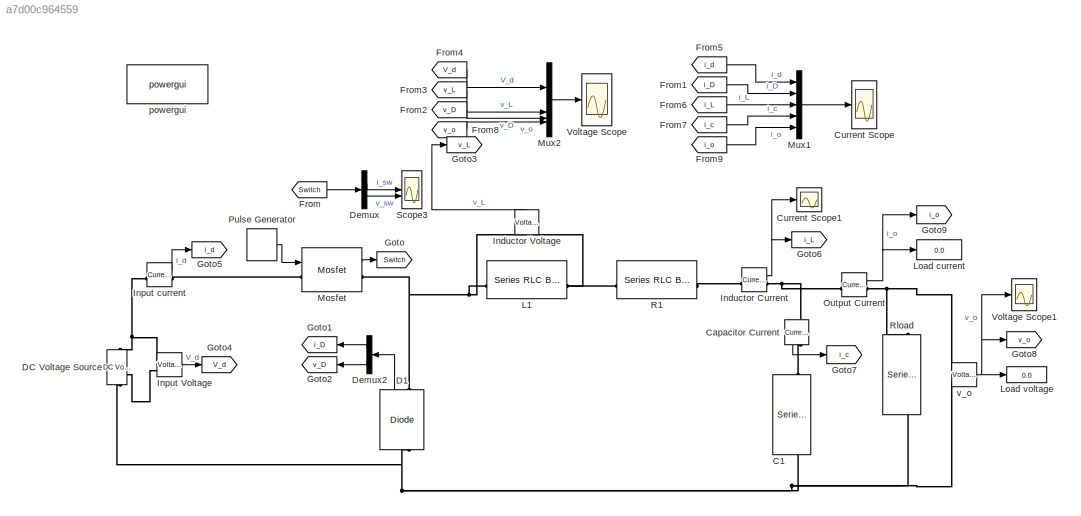
MODEL slx_a7d00c964559
KIND model
CONFIG AbsTol = auto
CONFIG EnableMultiTasking = off
CONFIG FixedStep = auto
CONFIG MaxStep = auto
CONFIG MinStep = auto
CONFIG RelTol = 1e-3
CONFIG SampleTimeConstraint = Unconstrained
CONFIG SolverName = VariableStepAuto
CONFIG StartTime = 0.0
CONFIG StopTime = 0.5
BLOCK [Reference] C1  REF=spsSeriesRLCBranchLib/Series RLC Branch
  NameLocation = left
  SourceBlock = spsSeriesRLCBranchLib/Series RLC Branch
  SourceType = Series RLC Branch
BLOCK [Reference] Capacitor Current  REF=spsCurrentMeasurementLib/Current Measurement
  NameLocation = left
  SourceBlock = spsCurrentMeasurementLib/Current Measurement
  SourceType = Current Measurement
  UserDataPersistent = on
BLOCK [Scope] Current Scope
  Floating = off
  NumInputPorts = 1
  ScopeSpecificationString = Simulink.scopes.TimeScopeBlockCfg('CurrentConfiguration', extmgr.ConfigurationSet(extmgr.Configuration('Core','General UI',true),extmgr.Configuration('Core','Source UI',true),extmgr.Configuration('Sources','WiredSimulink',true,'DataLoggingVariableName','ScopeData1'),extmgr.Configuration('Visuals','Time Domain',true,'SerializedDisplays',{struct('MinYLimReal','-0.55305','MaxYLimReal','4.01248','YLab...<+1630ch>
BLOCK [Scope] Current Scope1
  Floating = off
  NumInputPorts = 1
  ScopeSpecificationString = Simulink.scopes.TimeScopeBlockCfg('CurrentConfiguration', extmgr.ConfigurationSet(extmgr.Configuration('Core','General UI',true),extmgr.Configuration('Core','Source UI',true),extmgr.Configuration('Sources','WiredSimulink',true,'DataLoggingVariableName','ScopeData2'),extmgr.Configuration('Visuals','Time Domain',true,'SerializedDisplays',{struct('MinYLimReal','-0.89498','MaxYLimReal','8.05634','YLab...<+1523ch>
BLOCK [Reference] D1  REF=spsDiodeLib/Diode
  NameLocation = right
  SourceBlock = spsDiodeLib/Diode
  SourceType = Diode
BLOCK [Reference] DC Voltage Source  REF=spsDCVoltageSourceLib/DC Voltage Source
  SourceBlock = spsDCVoltageSourceLib/DC Voltage Source
  SourceType = DC Voltage Source
BLOCK [Demux] Demux
  Outputs = 2
BLOCK [Demux] Demux2
  NameLocation = top
  Outputs = 2
BLOCK [From] From
  GotoTag = Switch
BLOCK [From] From1
  GotoTag = i_D
BLOCK [From] From2
  GotoTag = v_D
BLOCK [From] From3
  GotoTag = v_L
BLOCK [From] From4
  GotoTag = V_d
BLOCK [From] From5
  GotoTag = i_d
BLOCK [From] From6
  GotoTag = i_L
BLOCK [From] From7
  GotoTag = i_c
BLOCK [From] From8
  GotoTag = v_o
BLOCK [From] From9
  GotoTag = i_o
BLOCK [Goto] Goto
  GotoTag = Switch
BLOCK [Goto] Goto1
  GotoTag = i_D
  NameLocation = top
BLOCK [Goto] Goto2
  GotoTag = v_D
  NameLocation = top
BLOCK [Goto] Goto3
  GotoTag = v_L
  NameLocation = top
BLOCK [Goto] Goto4
  GotoTag = V_d
  NameLocation = top
BLOCK [Goto] Goto5
  GotoTag = i_d
  NameLocation = top
BLOCK [Goto] Goto6
  GotoTag = i_L
  NameLocation = top
BLOCK [Goto] Goto7
  GotoTag = i_c
  NameLocation = top
BLOCK [Goto] Goto8
  GotoTag = v_o
  NameLocation = top
BLOCK [Goto] Goto9
  GotoTag = i_o
  NameLocation = top
BLOCK [Reference] Inductor Current  REF=spsCurrentMeasurementLib/Current Measurement
  SourceBlock = spsCurrentMeasurementLib/Current Measurement
  SourceType = Current Measurement
  UserDataPersistent = on
BLOCK [Reference] Inductor Voltage  REF=spsVoltageMeasurementLib/Voltage Measurement
  NameLocation = right
  SourceBlock = spsVoltageMeasurementLib/Voltage Measurement
  SourceType = Voltage Measurement
  UserDataPersistent = on
BLOCK [Reference] Input Voltage  REF=spsVoltageMeasurementLib/Voltage Measurement
  SourceBlock = spsVoltageMeasurementLib/Voltage Measurement
  SourceType = Voltage Measurement
  UserDataPersistent = on
BLOCK [Reference] Input current  REF=spsCurrentMeasurementLib/Current Measurement
  SourceBlock = spsCurrentMeasurementLib/Current Measurement
  SourceType = Current Measurement
  UserDataPersistent = on
BLOCK [Reference] L1  REF=spsSeriesRLCBranchLib/Series RLC Branch
  SourceBlock = spsSeriesRLCBranchLib/Series RLC Branch
  SourceType = Series RLC Branch
BLOCK [Display] Load current
  Decimation = 1
BLOCK [Display] Load voltage
  Decimation = 1
BLOCK [Reference] Mosfet  REF=spsMosfetLib/Mosfet
  SourceBlock = spsMosfetLib/Mosfet
  SourceType = Mosfet
BLOCK [Mux] Mux1
  DisplayOption = bar
  Inputs = 5
BLOCK [Mux] Mux2
  DisplayOption = bar
BLOCK [Reference] Output Current  REF=spsCurrentMeasurementLib/Current Measurement
  SourceBlock = spsCurrentMeasurementLib/Current Measurement
  SourceType = Current Measurement
  UserDataPersistent = on
BLOCK [DiscretePulseGenerator] Pulse Generator
  Period = 1/20e3
  PulseType = Time based
  PulseWidth = 75
BLOCK [Reference] R1  REF=spsSeriesRLCBranchLib/Series RLC Branch
  SourceBlock = spsSeriesRLCBranchLib/Series RLC Branch
  SourceType = Series RLC Branch
BLOCK [Reference] Rload  REF=spsSeriesRLCBranchLib/Series RLC Branch
  NameLocation = left
  SourceBlock = spsSeriesRLCBranchLib/Series RLC Branch
  SourceType = Series RLC Branch
BLOCK [Scope] Scope3
  Floating = off
  NumInputPorts = 2
  ScopeSpecificationString = Simulink.scopes.TimeScopeBlockCfg('CurrentConfiguration', extmgr.ConfigurationSet(extmgr.Configuration('Core','General UI',true),extmgr.Configuration('Core','Source UI',true),extmgr.Configuration('Sources','WiredSimulink',true,'DataLoggingVariableName','ScopeData3'),extmgr.Configuration('Visuals','Time Domain',true,'SerializedDisplays',{struct('MinYLimReal','-0.08506','MaxYLimReal','0.76555','YLab...<+2058ch>
BLOCK [Scope] Voltage Scope
  Floating = off
  NumInputPorts = 1
  ScopeSpecificationString = Simulink.scopes.TimeScopeBlockCfg('CurrentConfiguration', extmgr.ConfigurationSet(extmgr.Configuration('Core','General UI',true),extmgr.Configuration('Core','Source UI',true),extmgr.Configuration('Sources','WiredSimulink',true),extmgr.Configuration('Visuals','Time Domain',true,'SerializedDisplays',{struct('MinYLimReal','3.73224','MaxYLimReal','3.86601','YLabelReal','','MinYLimMag','3.73224','MaxYL...<+1582ch>
BLOCK [Scope] Voltage Scope1
  Floating = off
  NumInputPorts = 1
  ScopeSpecificationString = Simulink.scopes.TimeScopeBlockCfg('CurrentConfiguration', extmgr.ConfigurationSet(extmgr.Configuration('Core','General UI',true),extmgr.Configuration('Core','Source UI',true),extmgr.Configuration('Sources','WiredSimulink',true,'DataLoggingVariableName','ScopeData1'),extmgr.Configuration('Visuals','Time Domain',true,'SerializedDisplays',{struct('MinYLimReal','-1.53522','MaxYLimReal','13.81998','YLa...<+1554ch>
BLOCK [Reference] powergui  REF=spspowerguiLib/powergui
  Priority = 1
  SourceBlock = spspowerguiLib/powergui
  SourceType = PSB option menu block
BLOCK [Reference] v_o  REF=spsVoltageMeasurementLib/Voltage Measurement
  SourceBlock = spsVoltageMeasurementLib/Voltage Measurement
  SourceType = Voltage Measurement
  UserDataPersistent = on
LINE Capacitor Current:1 -> Goto7:1
LINE D1:1 -> Demux2:1
LINE Demux2:1 -> Goto1:1
LINE Demux2:2 -> Goto2:1
LINE Demux:1 -> Scope3:1
LINE Demux:2 -> Scope3:2
LINE From1:1 -> Mux1:2
LINE From2:1 -> Mux2:3
LINE From3:1 -> Mux2:2
LINE From4:1 -> Mux2:1
LINE From5:1 -> Mux1:1
LINE From6:1 -> Mux1:3
LINE From7:1 -> Mux1:4
LINE From8:1 -> Mux2:4
LINE From9:1 -> Mux1:5
LINE From:1 -> Demux:1
NET Inductor Current:1 -> Current Scope1:1, Goto6:1
LINE Inductor Voltage:1 -> Goto3:1
LINE Input Voltage:1 -> Goto4:1
LINE Input current:1 -> Goto5:1
LINE Mosfet:1 -> Goto:1
LINE Mux1:1 -> Current Scope:1
LINE Mux2:1 -> Voltage Scope:1
NET Output Current:1 -> Goto9:1, Load current:1
LINE Pulse Generator:1 -> Mosfet:1
NET v_o:1 -> Goto8:1, Load voltage:1, Voltage Scope1:1
PLINE C1:LConn1 -- Capacitor Current:RConn1
PNET net1: C1:RConn1 -- D1:LConn1 -- DC Voltage Source:LConn1 -- Input Voltage:LConn2 -- Rload:RConn1 -- v_o:LConn2
PNET net2: Capacitor Current:LConn1 -- Inductor Current:RConn1 -- Output Current:LConn1
PNET net3: D1:RConn1 -- Inductor Voltage:LConn1 -- L1:LConn1 -- Mosfet:RConn1
PNET net4: DC Voltage Source:RConn1 -- Input Voltage:LConn1 -- Input current:LConn1
PLINE Inductor Current:LConn1 -- R1:RConn1
PNET net5: Inductor Voltage:LConn2 -- L1:RConn1 -- R1:LConn1
PLINE Input current:RConn1 -- Mosfet:LConn1
PNET net6: Output Current:RConn1 -- Rload:LConn1 -- v_o:LConn1
note: NET lines group one-source signal fan-out (src -> all destinations, sorted); 1:1 wires keep LINE; PNET lines group multi-terminal physical nets as a canonical sorted terminal list (undirected conserving connections); 2-terminal nets keep the pairwise PLINE form
